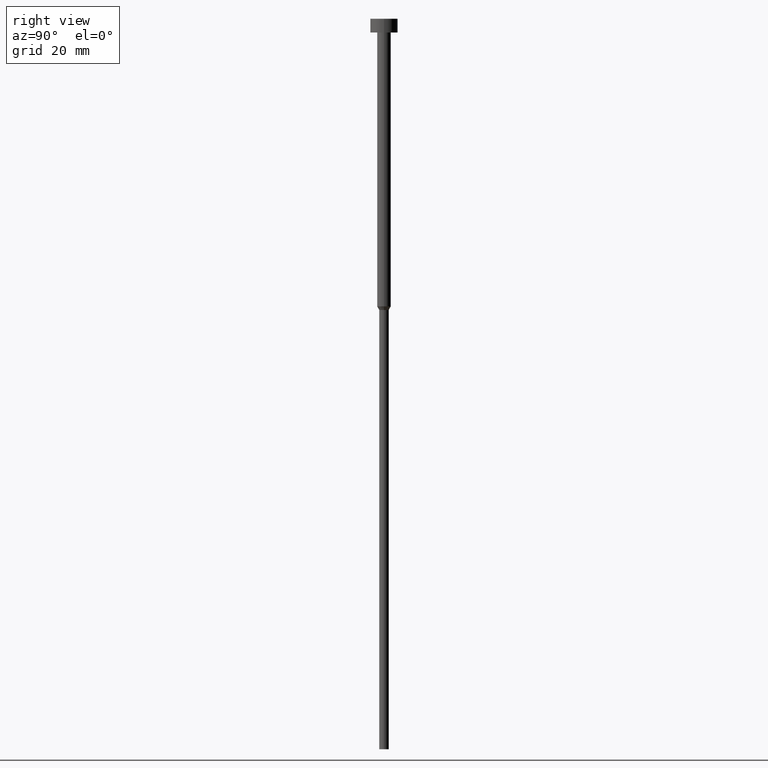
[diagram: clean part render]
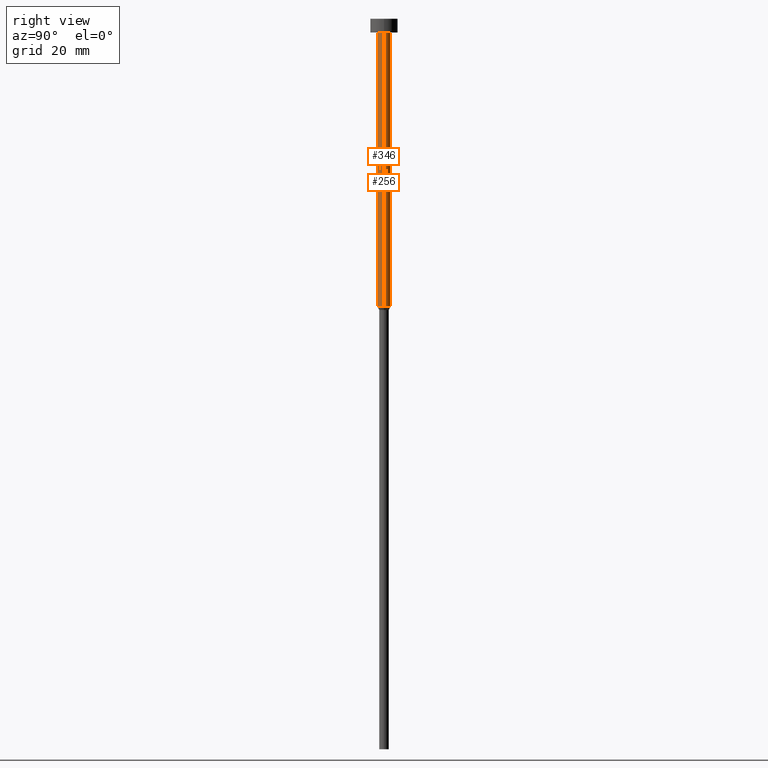
[diagram: same view with one multi-face feature highlighted, each face labeled with its STEP entity id]
A machine part, right view. The highlighted faces form ONE feature: a constant-radius fillet chain: 2 tangent blend faces with common blend radius 1.5 mm. The faces share edges in the B-rep.
Their STEP definitions:
[1] entity #256 (Cylinder):
#16 = VERTEX_POINT ( 'NONE', #134 ) ;
#29 = CARTESIAN_POINT ( 'NONE',  ( 0.000000000000000000, 0.000000000000000000, 0.000000000000000000 ) ) ;
#31 = EDGE_CURVE ( 'NONE', #124, #47, #158, .T. ) ;
#47 = VERTEX_POINT ( 'NONE', #244 ) ;
#54 = DIRECTION ( 'NONE',  ( 1.000000000000000000, 0.000000000000000000, 0.000000000000000000 ) ) ;
#58 = DIRECTION ( 'NONE',  ( 1.000000000000000000, 0.000000000000000000, 0.000000000000000000 ) ) ;
#59 = VERTEX_POINT ( 'NONE', #316 ) ;
#69 = DIRECTION ( 'NONE',  ( 1.000000000000000000, 0.000000000000000000, 0.000000000000000000 ) ) ;
#84 = CARTESIAN_POINT ( 'NONE',  ( -1.500000000000000000, 1.836970198721029934E-16, 0.000000000000000000 ) ) ;
#104 = VECTOR ( 'NONE', #177, 1000.000000000000000 ) ;
#106 = DIRECTION ( 'NONE',  ( -0.000000000000000000, -0.000000000000000000, 1.000000000000000000 ) ) ;
#111 = CARTESIAN_POINT ( 'NONE',  ( 0.000000000000000000, 0.000000000000000000, -63.00000000000000000 ) ) ;
#115 = CIRCLE ( 'NONE', #232, 1.500000000000000000 ) ;
#124 = VERTEX_POINT ( 'NONE', #251 ) ;
#133 = VECTOR ( 'NONE', #252, 1000.000000000000000 ) ;
#134 = CARTESIAN_POINT ( 'NONE',  ( 1.500000000000000000, 0.000000000000000000, -63.00000000000000000 ) ) ;
#151 = CIRCLE ( 'NONE', #224, 1.500000000000000000 ) ;
#156 = ORIENTED_EDGE ( 'NONE', *, *, #192, .F. ) ;
#157 = FACE_OUTER_BOUND ( 'NONE', #211, .T. ) ;
#158 = LINE ( 'NONE', #84, #104 ) ;
#164 = EDGE_CURVE ( 'NONE', #16, #124, #151, .T. ) ;
#167 = LINE ( 'NONE', #168, #133 ) ;
#168 = CARTESIAN_POINT ( 'NONE',  ( 1.500000000000000000, 0.000000000000000000, 0.000000000000000000 ) ) ;
#175 = EDGE_CURVE ( 'NONE', #16, #59, #167, .T. ) ;
#177 = DIRECTION ( 'NONE',  ( -0.000000000000000000, -0.000000000000000000, 1.000000000000000000 ) ) ;
#187 = DIRECTION ( 'NONE',  ( -0.000000000000000000, -0.000000000000000000, 1.000000000000000000 ) ) ;
#192 = EDGE_CURVE ( 'NONE', #59, #47, #115, .T. ) ;
#211 = EDGE_LOOP ( 'NONE', ( #278, #296, #156, #267 ) ) ;
#218 = AXIS2_PLACEMENT_3D ( 'NONE', #29, #328, #54 ) ;
#224 = AXIS2_PLACEMENT_3D ( 'NONE', #111, #106, #58 ) ;
#232 = AXIS2_PLACEMENT_3D ( 'NONE', #279, #187, #69 ) ;
#244 = CARTESIAN_POINT ( 'NONE',  ( -1.500000000000000000, 1.836970198721029934E-16, -3.000000000000000888 ) ) ;
#251 = CARTESIAN_POINT ( 'NONE',  ( -1.500000000000000000, 1.836970198721029934E-16, -63.00000000000000000 ) ) ;
#252 = DIRECTION ( 'NONE',  ( -0.000000000000000000, -0.000000000000000000, 1.000000000000000000 ) ) ;
#256 = ADVANCED_FACE ( 'NONE', ( #157 ), #273, .T. ) ;
#267 = ORIENTED_EDGE ( 'NONE', *, *, #175, .F. ) ;
#273 = CYLINDRICAL_SURFACE ( 'NONE', #218, 1.500000000000000000 ) ;
#278 = ORIENTED_EDGE ( 'NONE', *, *, #164, .T. ) ;
#279 = CARTESIAN_POINT ( 'NONE',  ( 0.000000000000000000, 0.000000000000000000, -3.000000000000000888 ) ) ;
#296 = ORIENTED_EDGE ( 'NONE', *, *, #31, .T. ) ;
#316 = CARTESIAN_POINT ( 'NONE',  ( 1.500000000000000000, 0.000000000000000000, -3.000000000000000888 ) ) ;
#328 = DIRECTION ( 'NONE',  ( -0.000000000000000000, -0.000000000000000000, 1.000000000000000000 ) ) ;
[2] entity #346 (Cylinder):
#16 = VERTEX_POINT ( 'NONE', #134 ) ;
#22 = AXIS2_PLACEMENT_3D ( 'NONE', #318, #121, #225 ) ;
#31 = EDGE_CURVE ( 'NONE', #124, #47, #158, .T. ) ;
#39 = EDGE_LOOP ( 'NONE', ( #240, #60, #249, #284 ) ) ;
#47 = VERTEX_POINT ( 'NONE', #244 ) ;
#49 = CARTESIAN_POINT ( 'NONE',  ( 0.000000000000000000, 0.000000000000000000, -3.000000000000000888 ) ) ;
#51 = FACE_OUTER_BOUND ( 'NONE', #39, .T. ) ;
#59 = VERTEX_POINT ( 'NONE', #316 ) ;
#60 = ORIENTED_EDGE ( 'NONE', *, *, #101, .T. ) ;
#83 = DIRECTION ( 'NONE',  ( 1.000000000000000000, 0.000000000000000000, 0.000000000000000000 ) ) ;
#84 = CARTESIAN_POINT ( 'NONE',  ( -1.500000000000000000, 1.836970198721029934E-16, 0.000000000000000000 ) ) ;
#87 = EDGE_CURVE ( 'NONE', #47, #59, #312, .T. ) ;
#101 = EDGE_CURVE ( 'NONE', #124, #16, #245, .T. ) ;
#104 = VECTOR ( 'NONE', #177, 1000.000000000000000 ) ;
#121 = DIRECTION ( 'NONE',  ( -0.000000000000000000, -0.000000000000000000, 1.000000000000000000 ) ) ;
#124 = VERTEX_POINT ( 'NONE', #251 ) ;
#133 = VECTOR ( 'NONE', #252, 1000.000000000000000 ) ;
#134 = CARTESIAN_POINT ( 'NONE',  ( 1.500000000000000000, 0.000000000000000000, -63.00000000000000000 ) ) ;
#158 = LINE ( 'NONE', #84, #104 ) ;
#167 = LINE ( 'NONE', #168, #133 ) ;
#168 = CARTESIAN_POINT ( 'NONE',  ( 1.500000000000000000, 0.000000000000000000, 0.000000000000000000 ) ) ;
#169 = AXIS2_PLACEMENT_3D ( 'NONE', #49, #200, #260 ) ;
#175 = EDGE_CURVE ( 'NONE', #16, #59, #167, .T. ) ;
#177 = DIRECTION ( 'NONE',  ( -0.000000000000000000, -0.000000000000000000, 1.000000000000000000 ) ) ;
#200 = DIRECTION ( 'NONE',  ( -0.000000000000000000, -0.000000000000000000, 1.000000000000000000 ) ) ;
#225 = DIRECTION ( 'NONE',  ( 1.000000000000000000, 0.000000000000000000, 0.000000000000000000 ) ) ;
#230 = DIRECTION ( 'NONE',  ( -0.000000000000000000, -0.000000000000000000, 1.000000000000000000 ) ) ;
#240 = ORIENTED_EDGE ( 'NONE', *, *, #31, .F. ) ;
#244 = CARTESIAN_POINT ( 'NONE',  ( -1.500000000000000000, 1.836970198721029934E-16, -3.000000000000000888 ) ) ;
#245 = CIRCLE ( 'NONE', #22, 1.500000000000000000 ) ;
#248 = AXIS2_PLACEMENT_3D ( 'NONE', #345, #230, #83 ) ;
#249 = ORIENTED_EDGE ( 'NONE', *, *, #175, .T. ) ;
#251 = CARTESIAN_POINT ( 'NONE',  ( -1.500000000000000000, 1.836970198721029934E-16, -63.00000000000000000 ) ) ;
#252 = DIRECTION ( 'NONE',  ( -0.000000000000000000, -0.000000000000000000, 1.000000000000000000 ) ) ;
#260 = DIRECTION ( 'NONE',  ( 1.000000000000000000, 0.000000000000000000, 0.000000000000000000 ) ) ;
#284 = ORIENTED_EDGE ( 'NONE', *, *, #87, .F. ) ;
#290 = CYLINDRICAL_SURFACE ( 'NONE', #248, 1.500000000000000000 ) ;
#312 = CIRCLE ( 'NONE', #169, 1.500000000000000000 ) ;
#316 = CARTESIAN_POINT ( 'NONE',  ( 1.500000000000000000, 0.000000000000000000, -3.000000000000000888 ) ) ;
#318 = CARTESIAN_POINT ( 'NONE',  ( 0.000000000000000000, 0.000000000000000000, -63.00000000000000000 ) ) ;
#345 = CARTESIAN_POINT ( 'NONE',  ( 0.000000000000000000, 0.000000000000000000, 0.000000000000000000 ) ) ;
#346 = ADVANCED_FACE ( 'NONE', ( #51 ), #290, .T. ) ;